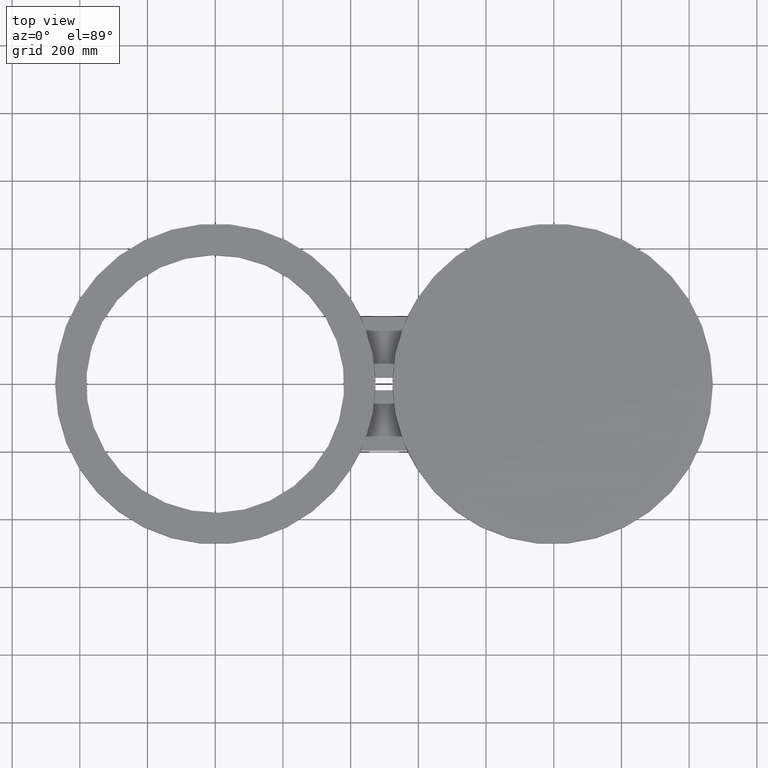
[diagram: clean part render]
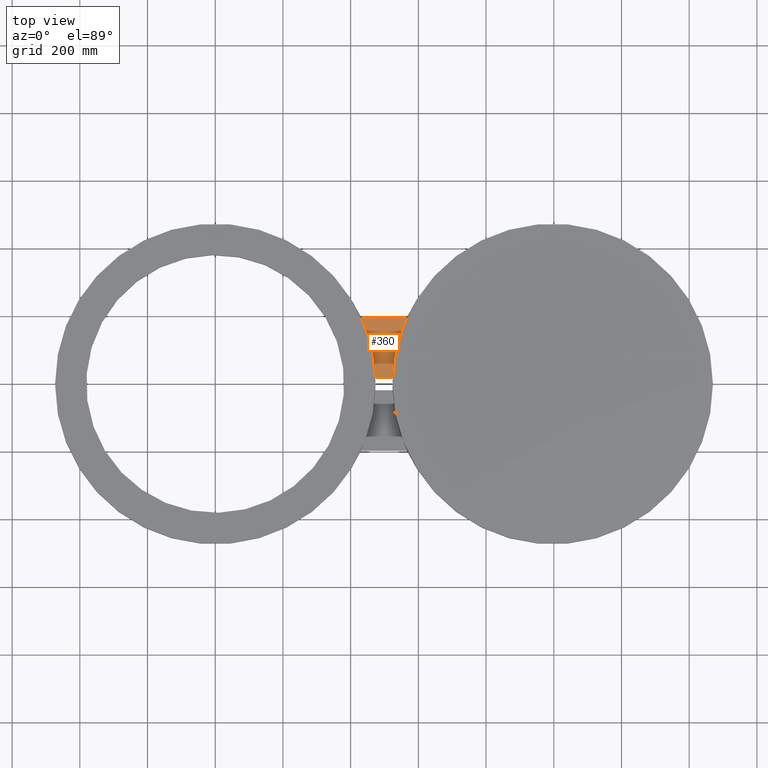
[diagram: same view with one face highlighted and labeled with its STEP entity id]
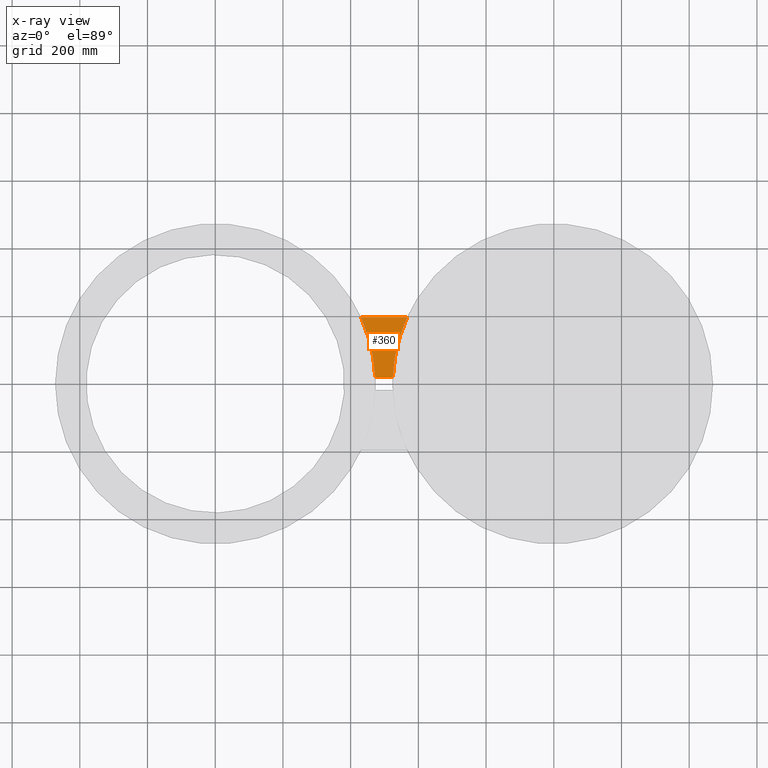
[diagram: x-ray of the same camera — body ghosted, the highlighted face saturated]
A machine part, top view. The second image highlights one B-rep face of the part: STEP entity #360.
The next image is the same camera in x-ray: the body ghosted, the highlighted face saturated — about 0% of this face is hidden behind the body in this view.
In plain terms, the highlighted planar face has unit normal (0, 0, 1).
Its self-contained STEP definition (entity closure, byte-faithful):
#320=AXIS2_PLACEMENT_3D('Circle Axis2P3D',#318,#319,$) ;
#340=AXIS2_PLACEMENT_3D('Plane Axis2P3D',#337,#338,#339) ;
#344=AXIS2_PLACEMENT_3D('Circle Axis2P3D',#342,#343,$) ;
#227=CARTESIAN_POINT('Vertex',(22.3139991439,7.75000000003,0.984375000004)) ;
#241=CARTESIAN_POINT('Vertex',(16.9360008562,7.75000000003,0.984375000004)) ;
#244=CARTESIAN_POINT('Line Origine',(19.6250000001,7.75000000003,0.984375000004)) ;
#318=CARTESIAN_POINT('Axis2P3D Location',(39.2500000002,4.80673868667E-015,0.984375000004)) ;
#322=CARTESIAN_POINT('Vertex',(20.6401067978,0.750000000003,0.984375000004)) ;
#337=CARTESIAN_POINT('Axis2P3D Location',(0.,0.,0.984375000004)) ;
#342=CARTESIAN_POINT('Axis2P3D Location',(4.9234457281E-014,1.34275792585E-014,0.984375000004)) ;
#346=CARTESIAN_POINT('Vertex',(18.6098932023,0.750000000003,0.984375000004)) ;
#349=CARTESIAN_POINT('Line Origine',(19.6250000001,0.750000000003,0.984375000004)) ;
#245=DIRECTION('Vector Direction',(-0.0393700787402,0.,0.)) ;
#319=DIRECTION('Axis2P3D Direction',(0.,0.,0.0393700787402)) ;
#338=DIRECTION('Axis2P3D Direction',(0.,0.,0.0393700787402)) ;
#339=DIRECTION('Axis2P3D XDirection',(0.0393700787402,0.,0.)) ;
#343=DIRECTION('Axis2P3D Direction',(0.,0.,0.0393700787402)) ;
#350=DIRECTION('Vector Direction',(0.0393700787402,0.,0.)) ;
#246=VECTOR('Line Direction',#245,0.0393700787402) ;
#351=VECTOR('Line Direction',#350,0.0393700787402) ;
#355=ORIENTED_EDGE('',*,*,#324,.F.) ;
#356=ORIENTED_EDGE('',*,*,#248,.T.) ;
#357=ORIENTED_EDGE('',*,*,#348,.F.) ;
#358=ORIENTED_EDGE('',*,*,#353,.T.) ;
#360=ADVANCED_FACE('PartBody',(#359),#341,.T.) ;
#321=CIRCLE('generated circle',#320,18.6250000001) ;
#345=CIRCLE('generated circle',#344,18.6250000001) ;
#248=EDGE_CURVE('',#228,#242,#247,.T.) ;
#324=EDGE_CURVE('',#228,#323,#321,.T.) ;
#348=EDGE_CURVE('',#347,#242,#345,.T.) ;
#353=EDGE_CURVE('',#347,#323,#352,.T.) ;
#354=EDGE_LOOP('',(#355,#356,#357,#358)) ;
#359=FACE_OUTER_BOUND('',#354,.T.) ;
#247=LINE('Line',#244,#246) ;
#352=LINE('Line',#349,#351) ;
#341=PLANE('',#340) ;
#228=VERTEX_POINT('',#227) ;
#242=VERTEX_POINT('',#241) ;
#323=VERTEX_POINT('',#322) ;
#347=VERTEX_POINT('',#346) ;